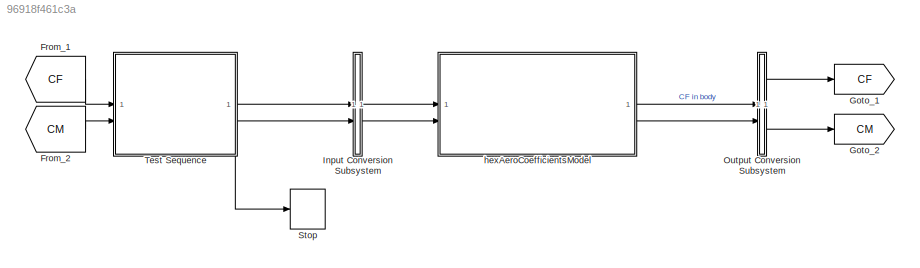
MODEL slx_96918f461c3a
KIND model
CONFIG AbsTol = auto
CONFIG EnableMultiTasking = off
CONFIG FixedStep = auto
CONFIG MaxStep = auto
CONFIG MinStep = auto
CONFIG RelTol = 1e-3
CONFIG SampleTimeConstraint = Unconstrained
CONFIG SolverName = VariableStepAuto
CONFIG StartTime = 0.0
CONFIG StopTime = inf
BLOCK [From] From_1
  GotoTag = CF
BLOCK [From] From_2
  GotoTag = CM
BLOCK [Goto] Goto_1
  GotoTag = CF
BLOCK [Goto] Goto_2
  GotoTag = CM
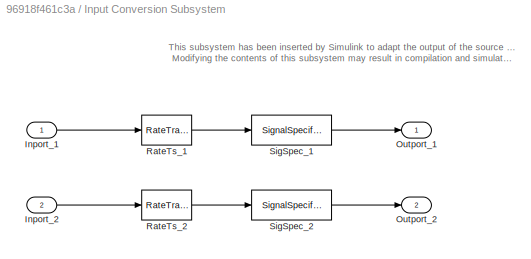
BLOCK [SubSystem] Input Conversion Subsystem
  AttributesFormatString = %<Description>
  Description = Signal spec.\nand routing
  Permissions = ReadOnly
  PermitHierarchicalResolution = ExplicitOnly
  Tag = __SLT_ICS__
  TreatAsGroupedWhenPropagatingVariantConditions = off
  UserDataPersistent = on
BLOCK [Inport] Input Conversion Subsystem/Inport_1
BLOCK [Inport] Input Conversion Subsystem/Inport_2
  Port = 2
BLOCK [Outport] Input Conversion Subsystem/Outport_1
BLOCK [Outport] Input Conversion Subsystem/Outport_2
  Port = 2
BLOCK [RateTransition] Input Conversion Subsystem/RateTs_1
  OutPortSampleTime = 0.004
BLOCK [RateTransition] Input Conversion Subsystem/RateTs_2
  OutPortSampleTime = 0.004
BLOCK [SignalSpecification] Input Conversion Subsystem/SigSpec_1
  Dimensions = [1]
  OutDataTypeStr = double
  SampleTime = 0.004
  SignalType = real
  VarSizeSig = No
BLOCK [SignalSpecification] Input Conversion Subsystem/SigSpec_2
  Dimensions = [1]
  OutDataTypeStr = double
  SampleTime = 0.004
  SignalType = real
  VarSizeSig = No
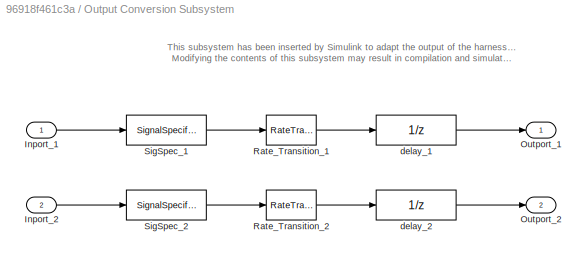
BLOCK [SubSystem] Output Conversion Subsystem
  AttributesFormatString = %<Description>
  Description = Signal spec.\nand routing
  Permissions = ReadOnly
  PermitHierarchicalResolution = ExplicitOnly
  Tag = __SLT_OCS__
  TreatAsGroupedWhenPropagatingVariantConditions = off
  UserDataPersistent = on
BLOCK [Inport] Output Conversion Subsystem/Inport_1
BLOCK [Inport] Output Conversion Subsystem/Inport_2
  Port = 2
BLOCK [Outport] Output Conversion Subsystem/Outport_1
BLOCK [Outport] Output Conversion Subsystem/Outport_2
  Port = 2
BLOCK [RateTransition] Output Conversion Subsystem/Rate_Transition_1
  OutPortSampleTimeOpt = Inherit
BLOCK [RateTransition] Output Conversion Subsystem/Rate_Transition_2
  OutPortSampleTimeOpt = Inherit
BLOCK [SignalSpecification] Output Conversion Subsystem/SigSpec_1
  Dimensions = [3]
  OutDataTypeStr = double
  SampleTime = 0.004
  SignalType = real
  VarSizeSig = No
BLOCK [SignalSpecification] Output Conversion Subsystem/SigSpec_2
  Dimensions = [3]
  OutDataTypeStr = double
  SignalType = real
  VarSizeSig = No
BLOCK [UnitDelay] Output Conversion Subsystem/delay_1
  SampleTime = -1
BLOCK [UnitDelay] Output Conversion Subsystem/delay_2
  SampleTime = -1
BLOCK [Stop] Stop
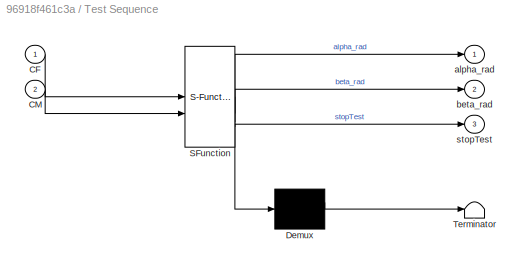
BLOCK [SubSystem] Test Sequence
  ErrorFcn = Stateflow.Translate.translate
  PermitHierarchicalResolution = ExplicitOnly
  SFBlockType = Test Sequence
  ShowPortLabels = none
  TreatAsAtomicUnit = on
BLOCK [Demux] Test Sequence/ Demux 
  Outputs = 1
BLOCK [S-Function] Test Sequence/ SFunction 
  EnableBusSupport = on
  FunctionName = sf_sfun
  Parameters = 1
  PortCounts = [2 4]
  SFcnIsStateOwnerBlock = off
  SFunctionDeploymentMode = off
  Tag = Stateflow S-Function 4
BLOCK [Terminator] Test Sequence/ Terminator 
BLOCK [Inport] Test Sequence/CF
BLOCK [Inport] Test Sequence/CM
  Port = 2
BLOCK [Outport] Test Sequence/alpha_rad
BLOCK [Outport] Test Sequence/beta_rad
  Port = 2
BLOCK [Outport] Test Sequence/stopTest
  Port = 3
BLOCK [ModelReference] hexAeroCoefficientsModel
  ModelNameDialog = hexAeroCoefficientsModel
  ModelReferenceVersion = 1.17
ANNOTATION Input Conversion Subsystem: This subsystem has been inserted by Simulink to adapt the output of the source blocks to the interface required by the harnessed component. Modifying the contents of this subsystem may result in compilation and simulation failure.
ANNOTATION Output Conversion Subsystem: This subsystem has been inserted by Simulink to adapt the output of the harnessed component to the interface required by the sink blocks. Modifying the contents of this subsystem may result in compilation and simulation failure.
LINE From_1:1 -> Test Sequence:1
LINE From_2:1 -> Test Sequence:2
LINE Input Conversion Subsystem/Inport_1:1 -> Input Conversion Subsystem/RateTs_1:1
LINE Input Conversion Subsystem/Inport_2:1 -> Input Conversion Subsystem/RateTs_2:1
LINE Input Conversion Subsystem/RateTs_1:1 -> Input Conversion Subsystem/SigSpec_1:1
LINE Input Conversion Subsystem/RateTs_2:1 -> Input Conversion Subsystem/SigSpec_2:1
LINE Input Conversion Subsystem/SigSpec_1:1 -> Input Conversion Subsystem/Outport_1:1
LINE Input Conversion Subsystem/SigSpec_2:1 -> Input Conversion Subsystem/Outport_2:1
LINE Input Conversion Subsystem:1 -> hexAeroCoefficientsModel:1
LINE Input Conversion Subsystem:2 -> hexAeroCoefficientsModel:2
LINE Output Conversion Subsystem/Inport_1:1 -> Output Conversion Subsystem/SigSpec_1:1
LINE Output Conversion Subsystem/Inport_2:1 -> Output Conversion Subsystem/SigSpec_2:1
LINE Output Conversion Subsystem/Rate_Transition_1:1 -> Output Conversion Subsystem/delay_1:1
LINE Output Conversion Subsystem/Rate_Transition_2:1 -> Output Conversion Subsystem/delay_2:1
LINE Output Conversion Subsystem/SigSpec_1:1 -> Output Conversion Subsystem/Rate_Transition_1:1
LINE Output Conversion Subsystem/SigSpec_2:1 -> Output Conversion Subsystem/Rate_Transition_2:1
LINE Output Conversion Subsystem/delay_1:1 -> Output Conversion Subsystem/Outport_1:1
LINE Output Conversion Subsystem/delay_2:1 -> Output Conversion Subsystem/Outport_2:1
LINE Output Conversion Subsystem:1 -> Goto_1:1
LINE Output Conversion Subsystem:2 -> Goto_2:1
LINE Test Sequence:1 -> Input Conversion Subsystem:1
LINE Test Sequence:2 -> Input Conversion Subsystem:2
LINE Test Sequence:3 -> Stop:1
LINE hexAeroCoefficientsModel:1 -> Output Conversion Subsystem:1
LINE hexAeroCoefficientsModel:2 -> Output Conversion Subsystem:2
CHART Test Sequence states=11 transitions=11
  STATE_LABEL 'Scenario_1'
  STATE_LABEL 'Initialize\n\n%% Initialize data outputs.\nalpha_rad = 0;\nbeta_rad = 0;\n\nstopTest = false;'
  STATE_LABEL 'setNoseDn\nalpha_rad = -0.1;\nbeta_rad = 0;'
  STATE_LABEL 'checkNoseDn\n%CX -\n%CY 0\n%CZ +\nverify(CF(1) < 0)\nverify(isClose(CF(2), 0))\nverify(CF(3) > 0)\nverify(isClose(CM(1), 0))\nverify(isClose(CM(2), 0))\nverify(isClose(CM(3), 0))'
  STATE_LABEL 'setNoseUp\nalpha_rad = 0.1;\nbeta_rad = 0;'
  STATE_LABEL 'checkNoseUp\n%CX -\n%CY 0\n%CZ -\nverify(CF(1) < 0)\nverify(isClose(CF(2), 0))\nverify(CF(3) < 0)\nverify(isClose(CM(1), 0))\nverify(isClose(CM(2), 0))\nverify(isClose(CM(3), 0))'
  STATE_LABEL 'setNoseDnLeft\nalpha_rad = -0.1;\nbeta_rad = 0.1;'
  STATE_LABEL 'checkNoseDnLeft\n%CX -\n%CY -\n%CZ +\nverify(CF(1) < 0)\nverify(CF(2) < 0)\nverify(CF(3) > 0)\nverify(isClose(CM(1), 0))\nverify(isClose(CM(2), 0))\nverify(isClose(CM(3), 0))'
  STATE_LABEL 'setNoseDnRight\nalpha_rad = -0.1;\nbeta_rad = -0.1;'
  STATE_LABEL 'checkNoseDnRight\n%CX -\n%CY +\n%CZ +\nverify(CF(1) < 0)\nverify(CF(2) > 0)\nverify(CF(3) > 0)\nverify(isClose(CM(1), 0))\nverify(isClose(CM(2), 0))\nverify(isClose(CM(3), 0))'
  STATE_LABEL 'EndTest\nstopTest = true;'
  STATE_LABEL '[\ntrue\n]'
  STATE_LABEL '[\nafter(1, sec)\n]'
  STATE_LABEL '[\ntrue\n]'
  STATE_LABEL '[\nafter(1, sec)\n]'
  STATE_LABEL '[\ntrue\n]'
  STATE_LABEL '[\nafter(1, sec)\n]'
  STATE_LABEL '[\ntrue\n]'
  STATE_LABEL '[\nafter(1, sec)\n]'
  STATE_LABEL '[\ntrue\n]'
  STATE_LABEL 'Initialize\n\n%% Initialize data outputs.\nalpha_rad = 0;\nbeta_rad = 0;\n\nstopTest = false;'
  STATE_LABEL 'setNoseDn\nalpha_rad = -0.1;\nbeta_rad = 0;'
  STATE_LABEL 'checkNoseDn\n%CX -\n%CY 0\n%CZ +\nverify(CF(1) < 0)\nverify(isClose(CF(2), 0))\nverify(CF(3) > 0)\nverify(isClose(CM(1), 0))\nverify(isClose(CM(2), 0))\nverify(isClose(CM(3), 0))'
  STATE_LABEL 'setNoseUp\nalpha_rad = 0.1;\nbeta_rad = 0;'
  STATE_LABEL 'checkNoseUp\n%CX -\n%CY 0\n%CZ -\nverify(CF(1) < 0)\nverify(isClose(CF(2), 0))\nverify(CF(3) < 0)\nverify(isClose(CM(1), 0))\nverify(isClose(CM(2), 0))\nverify(isClose(CM(3), 0))'
  STATE_LABEL 'setNoseDnLeft\nalpha_rad = -0.1;\nbeta_rad = 0.1;'
  STATE_LABEL 'checkNoseDnLeft\n%CX -\n%CY -\n%CZ +\nverify(CF(1) < 0)\nverify(CF(2) < 0)\nverify(CF(3) > 0)\nverify(isClose(CM(1), 0))\nverify(isClose(CM(2), 0))\nverify(isClose(CM(3), 0))'
  STATE_LABEL 'setNoseDnRight\nalpha_rad = -0.1;\nbeta_rad = -0.1;'
  STATE_LABEL 'checkNoseDnRight\n%CX -\n%CY +\n%CZ +\nverify(CF(1) < 0)\nverify(CF(2) > 0)\nverify(CF(3) > 0)\nverify(isClose(CM(1), 0))\nverify(isClose(CM(2), 0))\nverify(isClose(CM(3), 0))'
  STATE_LABEL 'EndTest\nstopTest = true;'
